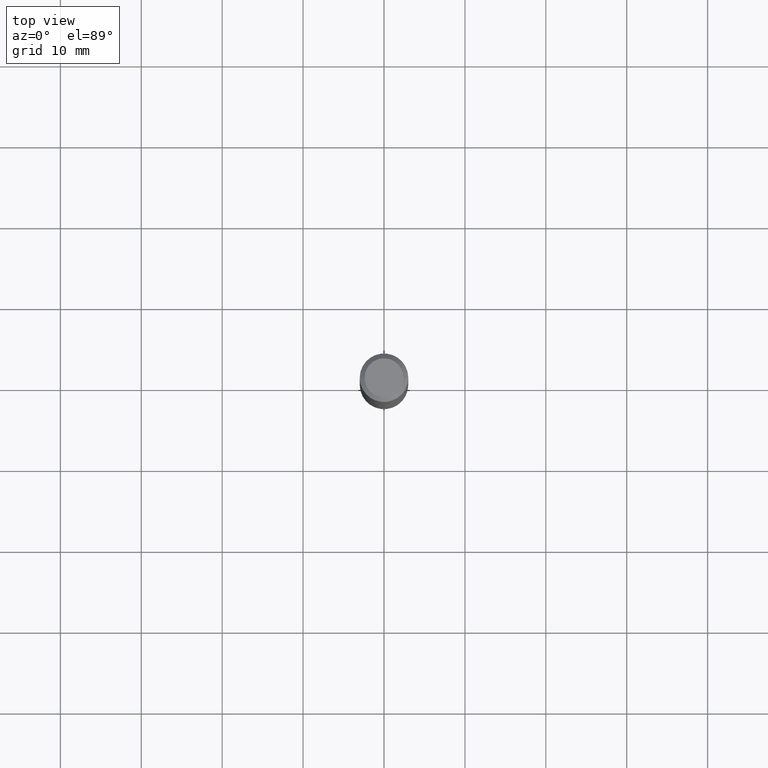
[diagram: clean part render]
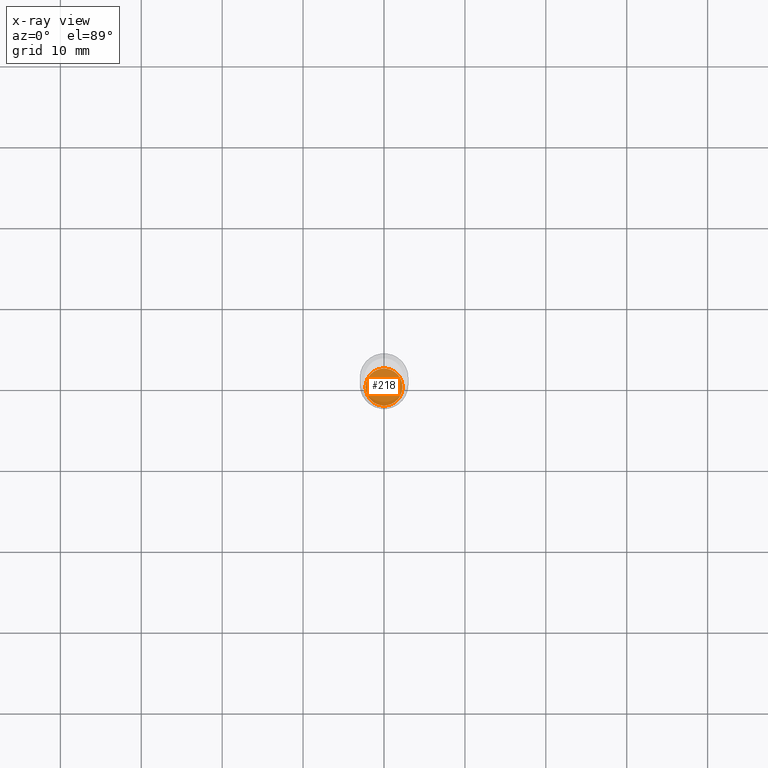
[diagram: x-ray — body ghosted, one internal face saturated and labeled with its STEP entity id]
A machine part, top view, then the same camera in x-ray: the body is ghosted and one INTERNAL B-rep face — a face not visible from any outside direction — is saturated and labeled: STEP entity #218.
In plain terms, the highlighted planar face has unit normal (-0, 0, 1).
Its self-contained STEP definition (entity closure, byte-faithful):
#14 = EDGE_CURVE ( 'NONE', #188, #185, #499, .T. ) ;
#41 = DIRECTION ( 'NONE',  ( 1.000000000000000000, -6.982962677686260400E-15, 0.000000000000000000 ) ) ;
#55 = CIRCLE ( 'NONE', #350, 0.09005000000000000504 ) ;
#63 = CARTESIAN_POINT ( 'NONE',  ( 6.466553164195356287E-29, -9.232524104302930594E-15, -2.644299999999999873 ) ) ;
#73 = CARTESIAN_POINT ( 'NONE',  ( 0.09005000000000000504, -9.861339893428579057E-15, -2.644299999999999873 ) ) ;
#111 = CARTESIAN_POINT ( 'NONE',  ( -0.09005000000000000504, -8.590031143576848647E-15, -2.644299999999999873 ) ) ;
#126 = DIRECTION ( 'NONE',  ( -2.445468806185136597E-29, 3.491481338843145583E-15, 1.000000000000000000 ) ) ;
#132 = FACE_OUTER_BOUND ( 'NONE', #365, .T. ) ;
#135 = EDGE_CURVE ( 'NONE', #185, #188, #55, .T. ) ;
#140 = DIRECTION ( 'NONE',  ( 1.000000000000000000, -6.982962677686265922E-15, 4.876176775795935793E-29 ) ) ;
#173 = DIRECTION ( 'NONE',  ( -2.438088387897960049E-29, 3.491481338843145188E-15, 1.000000000000000000 ) ) ;
#179 = PLANE ( 'NONE',  #180 ) ;
#180 = AXIS2_PLACEMENT_3D ( 'NONE', #299, #173, #140 ) ;
#185 = VERTEX_POINT ( 'NONE', #111 ) ;
#188 = VERTEX_POINT ( 'NONE', #73 ) ;
#218 = ADVANCED_FACE ( 'NONE', ( #132 ), #179, .F. ) ;
#261 = DIRECTION ( 'NONE',  ( 1.000000000000000000, -6.982962677686260400E-15, 0.000000000000000000 ) ) ;
#286 = ORIENTED_EDGE ( 'NONE', *, *, #135, .F. ) ;
#299 = CARTESIAN_POINT ( 'NONE',  ( 6.466553164195356287E-29, -9.232524104302930594E-15, -2.644299999999999873 ) ) ;
#350 = AXIS2_PLACEMENT_3D ( 'NONE', #63, #471, #41 ) ;
#365 = EDGE_LOOP ( 'NONE', ( #384, #286 ) ) ;
#384 = ORIENTED_EDGE ( 'NONE', *, *, #14, .F. ) ;
#414 = CARTESIAN_POINT ( 'NONE',  ( 6.466553164195356287E-29, -9.232524104302930594E-15, -2.644299999999999873 ) ) ;
#431 = AXIS2_PLACEMENT_3D ( 'NONE', #414, #126, #261 ) ;
#471 = DIRECTION ( 'NONE',  ( -2.445468806185136597E-29, 3.491481338843145583E-15, 1.000000000000000000 ) ) ;
#499 = CIRCLE ( 'NONE', #431, 0.09005000000000000504 ) ;